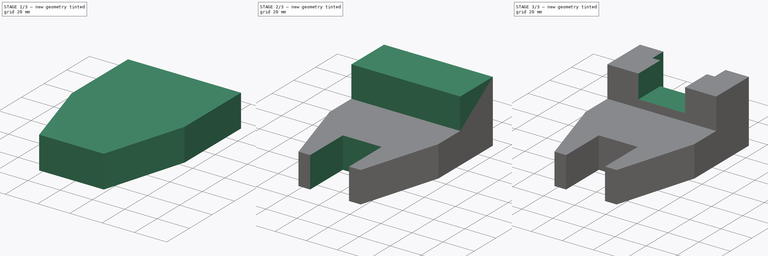
[diagram: build sequence overview — one tinted view per stage of 3, left to right]
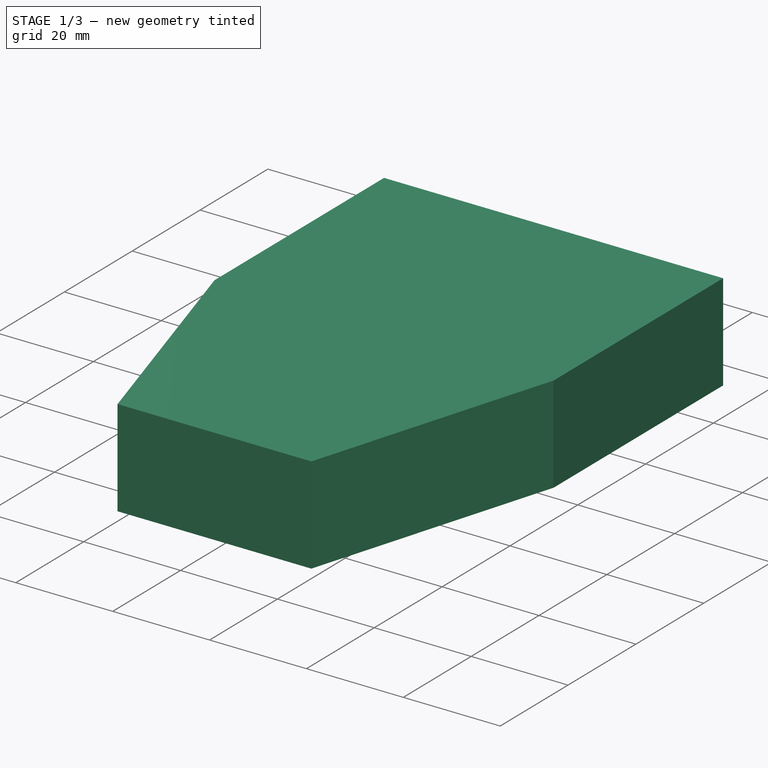
[diagram: stage 1 of 3 — iso view after this stage's code; geometry added in this stage tinted green]
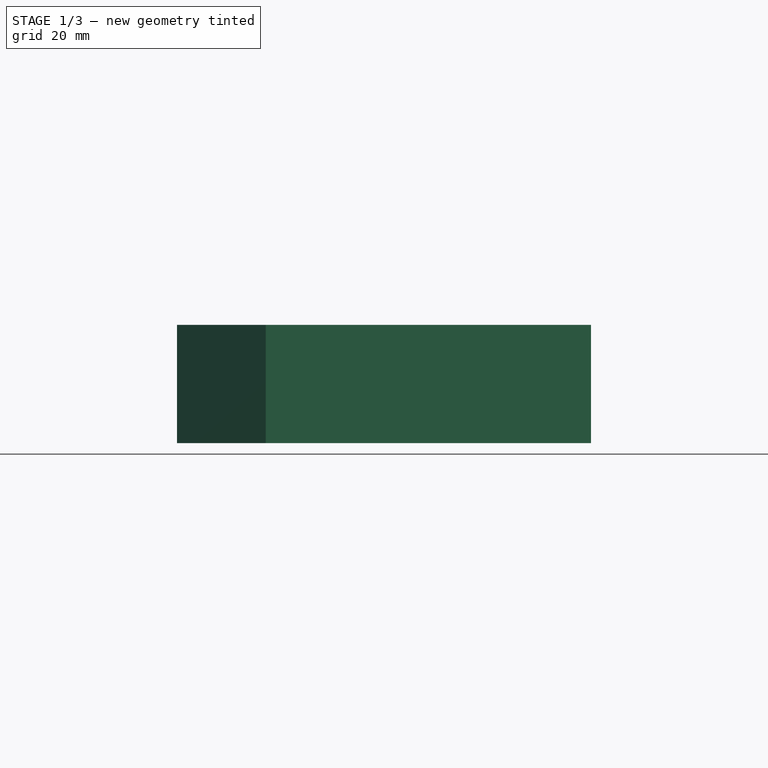
[diagram: stage 1 of 3 — front view after this stage's code; geometry added in this stage tinted green]
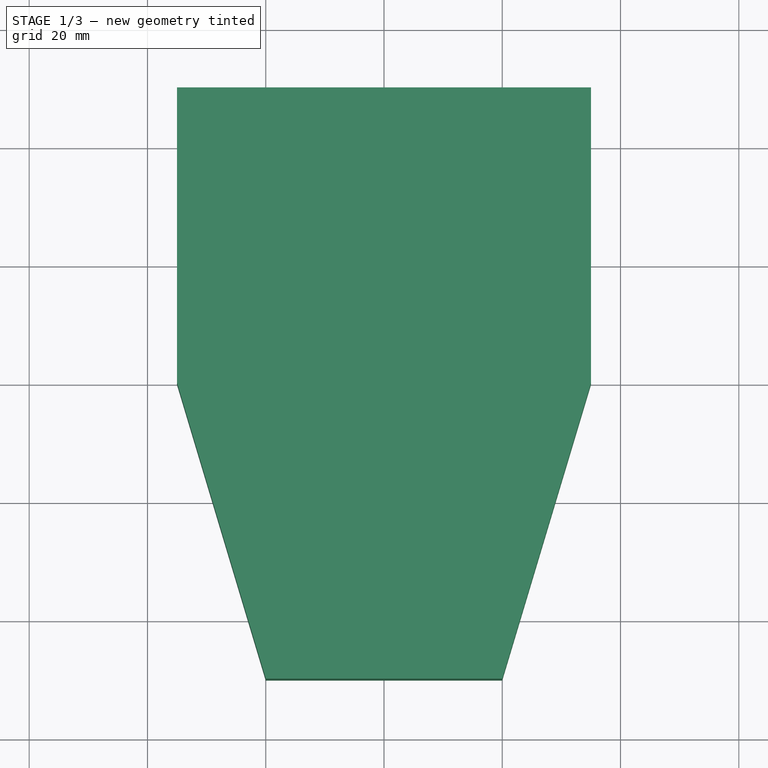
[diagram: stage 1 of 3 — top view after this stage's code; geometry added in this stage tinted green]
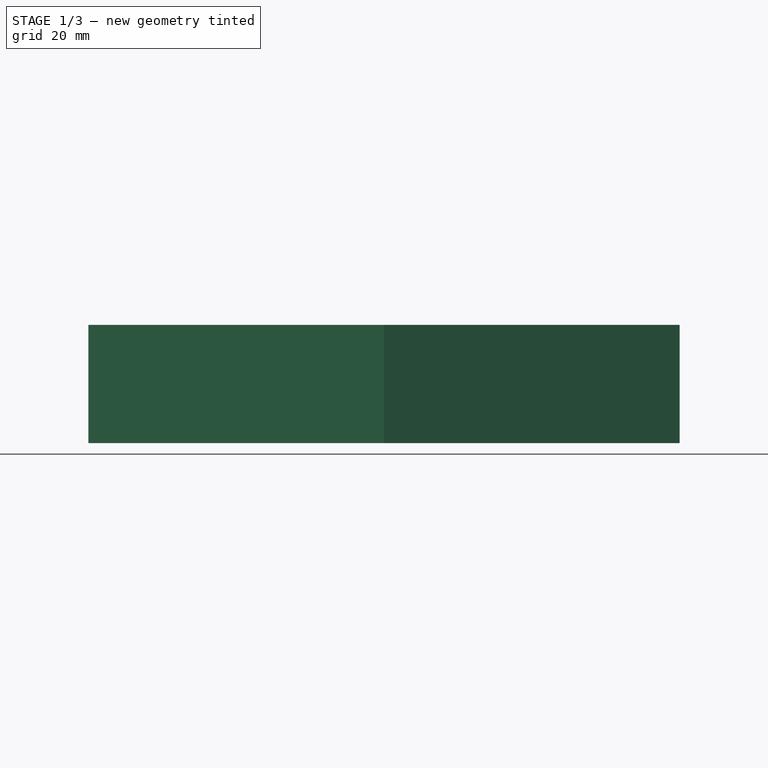
[diagram: stage 1 of 3 — right view after this stage's code; geometry added in this stage tinted green]
FCSTD DOCUMENT  (FreeCAD 0.16R)
Label: Fig 3.28 Final
License: All rights reserved
LicenseURL: http://en.wikipedia.org/wiki/All_rights_reserved
objects: Sketcher::SketchObject×6, PartDesign::Pocket×4, PartDesign::Pad×2
note: 18 computed .brp shape members not serialized (recipe doc carries the construction recipe); baked Part::Feature solids carry a one-line shape summary decoded from their .brp

FEATURE [Sketcher::SketchObject] Sketch
  sketch-geometry (4):
    g0: LineSegment StartX=-35 StartY=-50 StartZ=0 EndX=35 EndY=-50 EndZ=0
    g1: LineSegment StartX=35 StartY=-50 StartZ=0 EndX=35 EndY=50 EndZ=0
    g2: LineSegment StartX=35 StartY=50 StartZ=0 EndX=-35 EndY=50 EndZ=0
    g3: LineSegment StartX=-35 StartY=50 StartZ=0 EndX=-35 EndY=-50 EndZ=0
  constraints (12):
    c: Coincident(g0,g1)
    c: Coincident(g1,g2)
    c: Coincident(g2,g3)
    c: Coincident(g3,g0)
    c: Horizontal(g0)
    c: Horizontal(g2)
    c: Vertical(g1)
    c: Vertical(g3)
    c: DistanceY(g3,g3) = 100
    c: DistanceX(g0,g0) = 70
    c: Symmetric(g0,g0,g-2)
    c: Symmetric(g1,g0,g-1)
FEATURE [PartDesign::Pad] Pad
  Length = 20
  Length2 = 100
  Sketch = -> Sketch
  Type = 0
FEATURE [Sketcher::SketchObject] Sketch001
  ExternalGeometry = -> [Pad]
  Placement = pos=(0,0,20) rot=(0,0,1;0rad)
  Support = -> Pad [Face6]
  sketch-geometry (6):
    g0: LineSegment StartX=35 StartY=0 StartZ=0 EndX=35 EndY=-50 EndZ=0
    g1: LineSegment StartX=35 StartY=-50 StartZ=0 EndX=20 EndY=-50 EndZ=0
    g2: LineSegment StartX=20 StartY=-50 StartZ=0 EndX=35 EndY=0 EndZ=0
    g3: LineSegment StartX=-35 StartY=0 StartZ=0 EndX=-35 EndY=-50 EndZ=0
    g4: LineSegment StartX=-35 StartY=-50 StartZ=0 EndX=-20 EndY=-50 EndZ=0
    g5: LineSegment StartX=-20 StartY=-50 StartZ=0 EndX=-35 EndY=0 EndZ=0
  constraints (16):
    c: Vertical(g0)
    c: Coincident(g0,g1)
    c: Coincident(g1,g2)
    c: Coincident(g2,g0)
    c: Vertical(g3)
    c: Coincident(g3,g4)
    c: Coincident(g4,g5)
    c: Coincident(g5,g3)
    c: Coincident(g3,g-5)
    c: Horizontal(g4)
    c: Horizontal(g1)
    c: Coincident(g0,g-4)
    c: DistanceY(g0,g0) = 50
    c: DistanceY(g3,g3) = 50
    c: DistanceX(g3,g4) = 15
    c: DistanceX(g1,g0) = 15
FEATURE [PartDesign::Pocket] Pocket
  Length = 5
  Sketch = -> Sketch001
  Type = 1
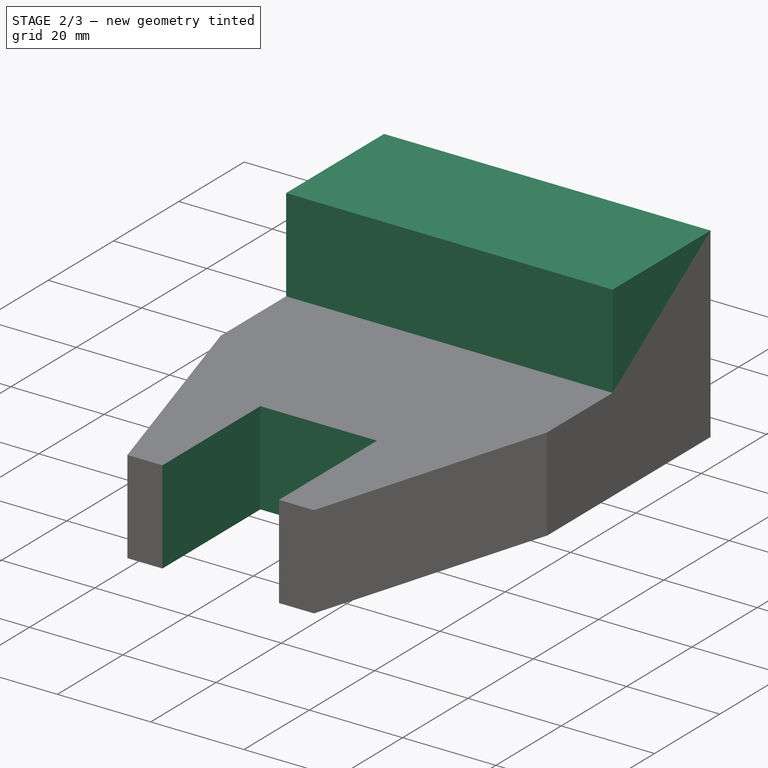
[diagram: stage 2 of 3 — iso view after this stage's code; geometry added in this stage tinted green]
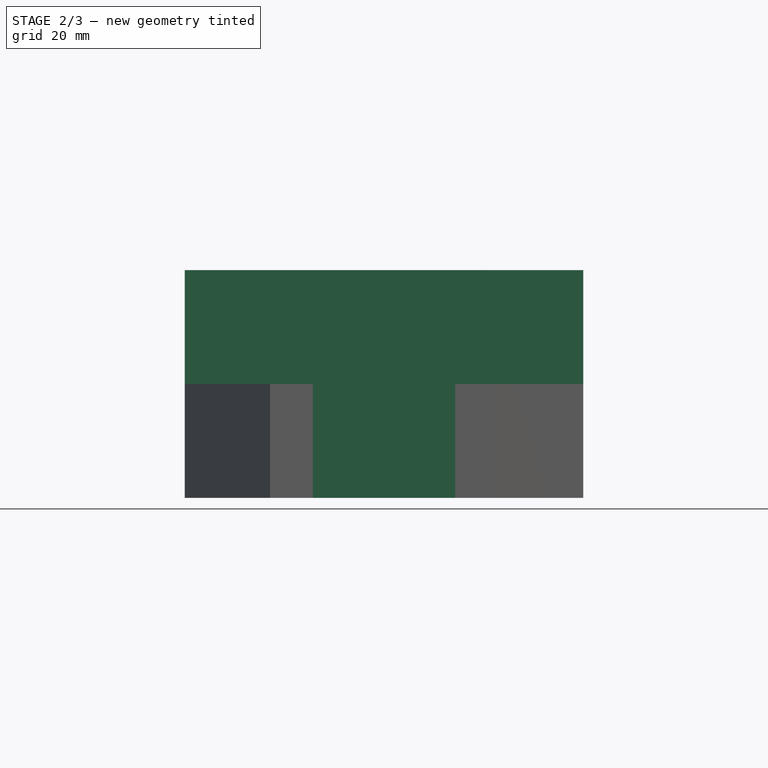
[diagram: stage 2 of 3 — front view after this stage's code; geometry added in this stage tinted green]
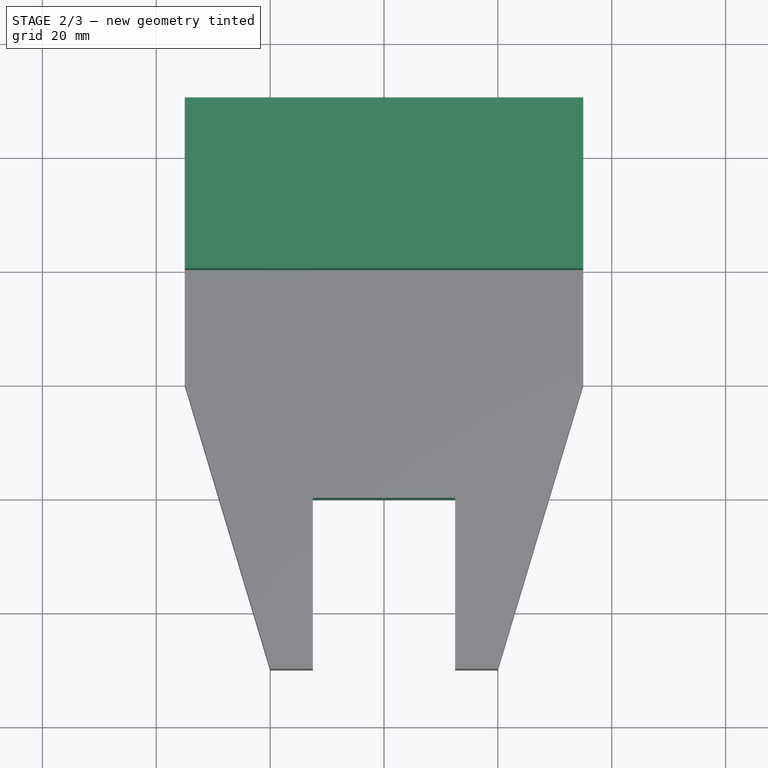
[diagram: stage 2 of 3 — top view after this stage's code; geometry added in this stage tinted green]
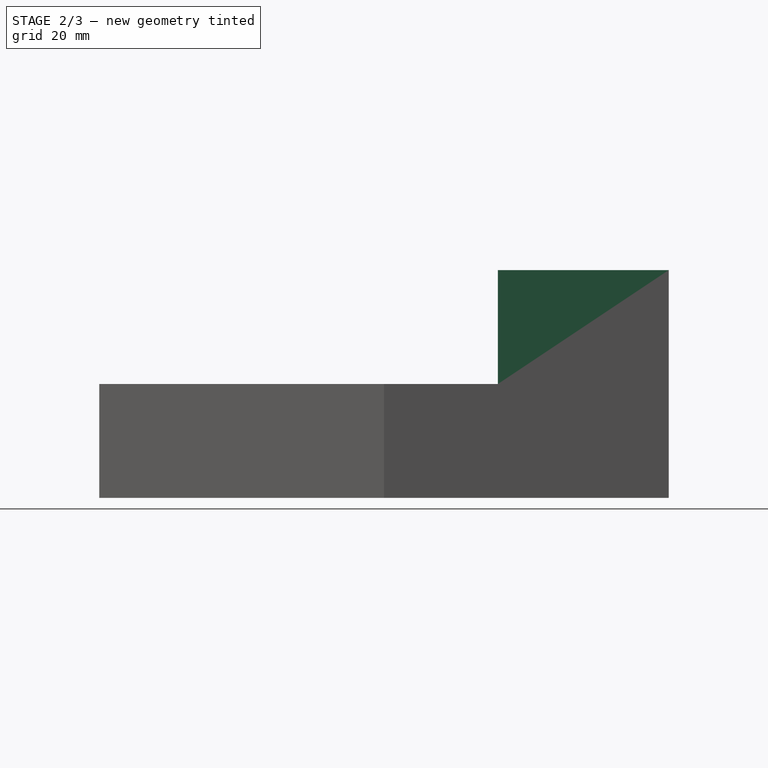
[diagram: stage 2 of 3 — right view after this stage's code; geometry added in this stage tinted green]
FEATURE [Sketcher::SketchObject] Sketch002
  ExternalGeometry = -> [Pocket]
  Placement = pos=(0,0,20) rot=(0,0,1;0rad)
  Support = -> Pocket [Face5]
  sketch-geometry (4):
    g0: LineSegment StartX=-12.5 StartY=-20 StartZ=0 EndX=12.5 EndY=-20 EndZ=0
    g1: LineSegment StartX=12.5 StartY=-20 StartZ=0 EndX=12.5 EndY=-50 EndZ=0
    g2: LineSegment StartX=12.5 StartY=-50 StartZ=0 EndX=-12.5 EndY=-50 EndZ=0
    g3: LineSegment StartX=-12.5 StartY=-50 StartZ=0 EndX=-12.5 EndY=-20 EndZ=0
  constraints (12):
    c: Coincident(g0,g1)
    c: Coincident(g1,g2)
    c: Coincident(g2,g3)
    c: Coincident(g3,g0)
    c: Horizontal(g0)
    c: Horizontal(g2)
    c: Vertical(g1)
    c: Vertical(g3)
    c: Symmetric(g1,g2,g-2)
    c: DistanceX(g2,g2) = 25
    c: DistanceY(g1,g0) = 30
    c: PointOnObject(g1,g-3)
FEATURE [PartDesign::Pocket] Pocket001
  Length = 5
  Sketch = -> Sketch002
  Type = 1
FEATURE [Sketcher::SketchObject] Sketch003
  ExternalGeometry = -> [Pocket001]
  Placement = pos=(0,0,20) rot=(0,0,1;0rad)
  Support = -> Pocket001 [Face5]
  sketch-geometry (4):
    g0: LineSegment StartX=-35 StartY=50 StartZ=0 EndX=35 EndY=50 EndZ=0
    g1: LineSegment StartX=35 StartY=50 StartZ=0 EndX=35 EndY=20 EndZ=0
    g2: LineSegment StartX=35 StartY=20 StartZ=0 EndX=-35 EndY=20 EndZ=0
    g3: LineSegment StartX=-35 StartY=20 StartZ=0 EndX=-35 EndY=50 EndZ=0
  constraints (11):
    c: Coincident(g0,g1)
    c: Coincident(g1,g2)
    c: Coincident(g2,g3)
    c: Coincident(g3,g0)
    c: Horizontal(g0)
    c: Horizontal(g2)
    c: Vertical(g1)
    c: Vertical(g3)
    c: Coincident(g0,g-3)
    c: Coincident(g0,g-3)
    c: DistanceY(g1,g1) = 30
FEATURE [PartDesign::Pad] Pad001
  Length = 20
  Length2 = 100
  Sketch = -> Sketch003
  Type = 0
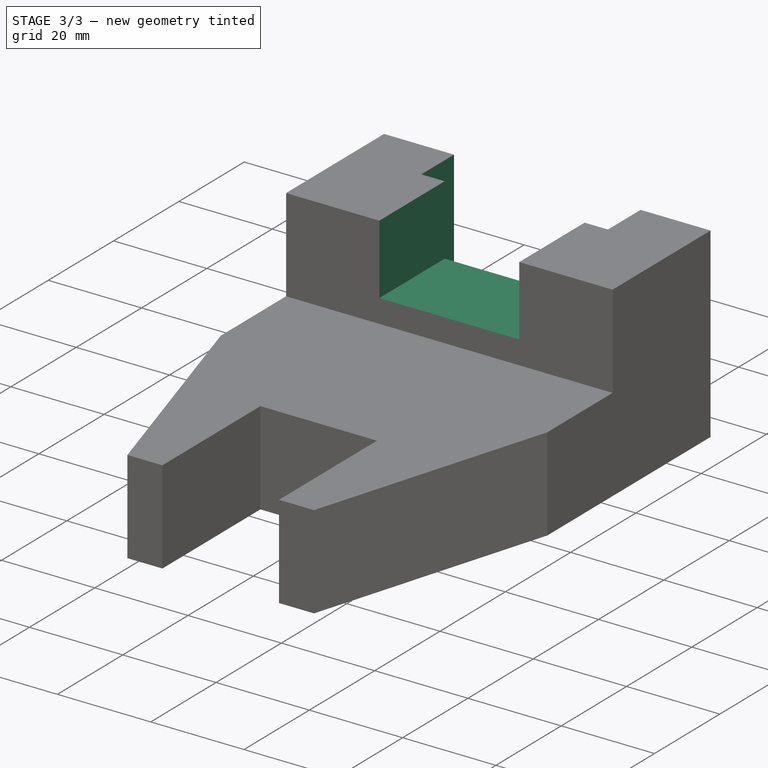
[diagram: stage 3 of 3 — iso view after this stage's code; geometry added in this stage tinted green]
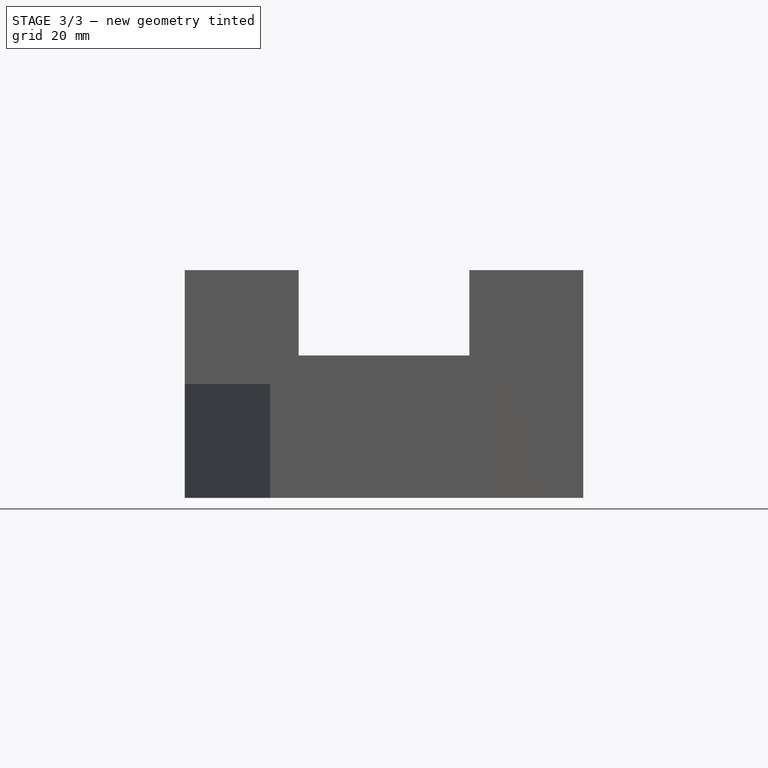
[diagram: stage 3 of 3 — front view after this stage's code; geometry added in this stage tinted green]
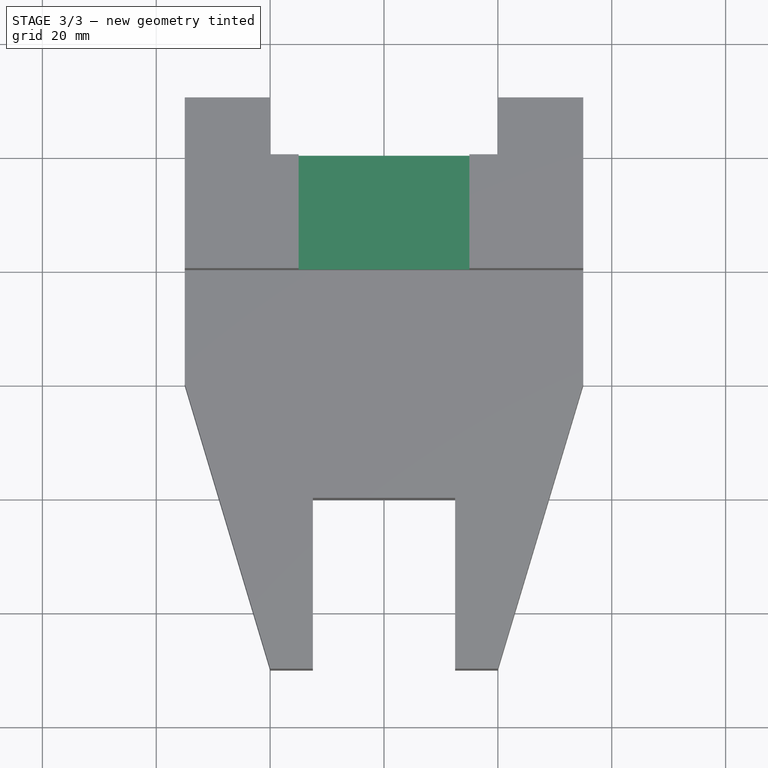
[diagram: stage 3 of 3 — top view after this stage's code; geometry added in this stage tinted green]
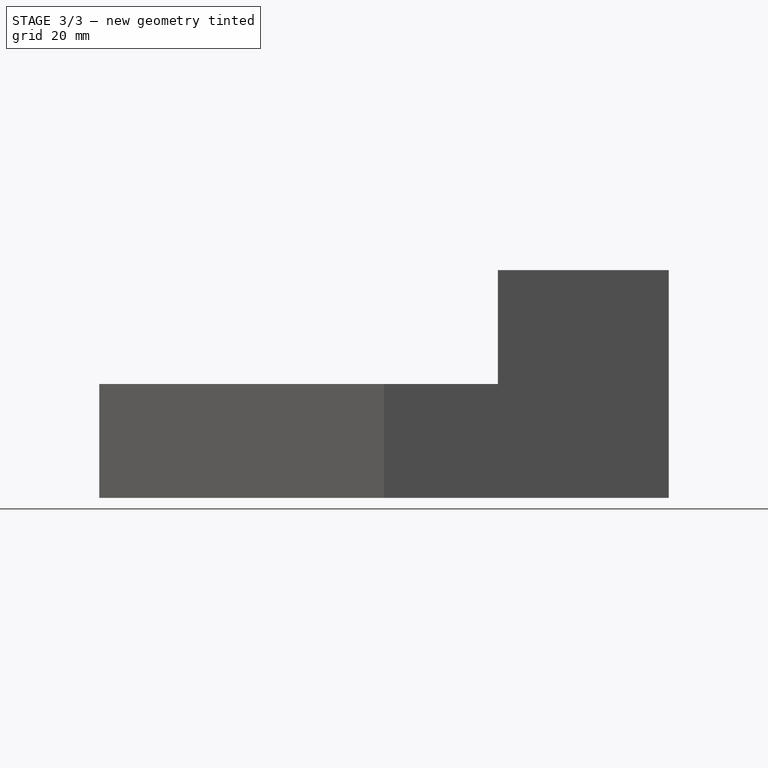
[diagram: stage 3 of 3 — right view after this stage's code; geometry added in this stage tinted green]
FEATURE [Sketcher::SketchObject] Sketch004
  ExternalGeometry = -> [Pad001]
  Placement = pos=(0,0,40) rot=(0,0,1;0rad)
  Support = -> Pad001 [Face11]
  sketch-geometry (4):
    g0: LineSegment StartX=-20 StartY=61.64 StartZ=0 EndX=20 EndY=61.64 EndZ=0
    g1: LineSegment StartX=20 StartY=61.64 StartZ=0 EndX=20 EndY=40 EndZ=0
    g2: LineSegment StartX=20 StartY=40 StartZ=0 EndX=-20 EndY=40 EndZ=0
    g3: LineSegment StartX=-20 StartY=40 StartZ=0 EndX=-20 EndY=61.64 EndZ=0
  constraints (11):
    c: Coincident(g0,g1)
    c: Coincident(g1,g2)
    c: Coincident(g2,g3)
    c: Coincident(g3,g0)
    c: Horizontal(g0)
    c: Horizontal(g2)
    c: Vertical(g1)
    c: Vertical(g3)
    c: DistanceX(g0,g0) = 40
    c: Symmetric(g1,g2,g-2)
    c: DistanceY(g1,g-3) = 10
FEATURE [PartDesign::Pocket] Pocket002
  Length = 5
  Sketch = -> Sketch004
  Type = 1
FEATURE [Sketcher::SketchObject] Sketch005
  Placement = pos=(0,0,40) rot=(0,0,1;0rad)
  Support = -> Pocket002 [Face18]
  sketch-geometry (4):
    g0: LineSegment StartX=-15 StartY=50.2933 StartZ=0 EndX=15 EndY=50.2933 EndZ=0
    g1: LineSegment StartX=15 StartY=50.2933 StartZ=0 EndX=15 EndY=12.2667 EndZ=0
    g2: LineSegment StartX=15 StartY=12.2667 StartZ=0 EndX=-15 EndY=12.2667 EndZ=0
    g3: LineSegment StartX=-15 StartY=12.2667 StartZ=0 EndX=-15 EndY=50.2933 EndZ=0
  constraints (10):
    c: Coincident(g0,g1)
    c: Coincident(g1,g2)
    c: Coincident(g2,g3)
    c: Coincident(g3,g0)
    c: Horizontal(g0)
    c: Horizontal(g2)
    c: Vertical(g1)
    c: Vertical(g3)
    c: DistanceX(g0,g0) = 30
    c: Symmetric(g0,g0,g-2)
FEATURE [PartDesign::Pocket] Pocket003
  Length = 15
  Sketch = -> Sketch005
  Type = 0
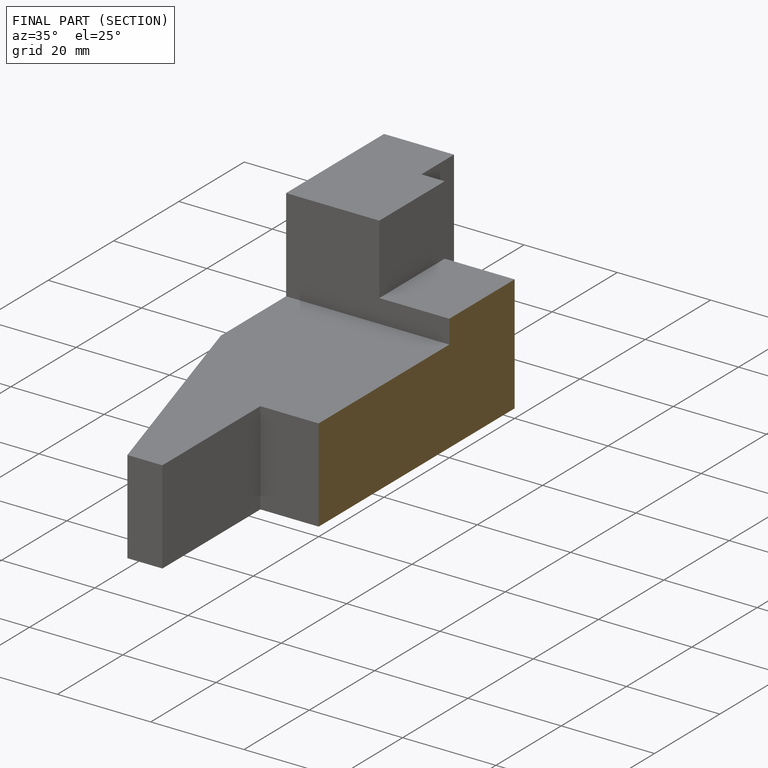
[diagram: finished part — half-section view (interior)]
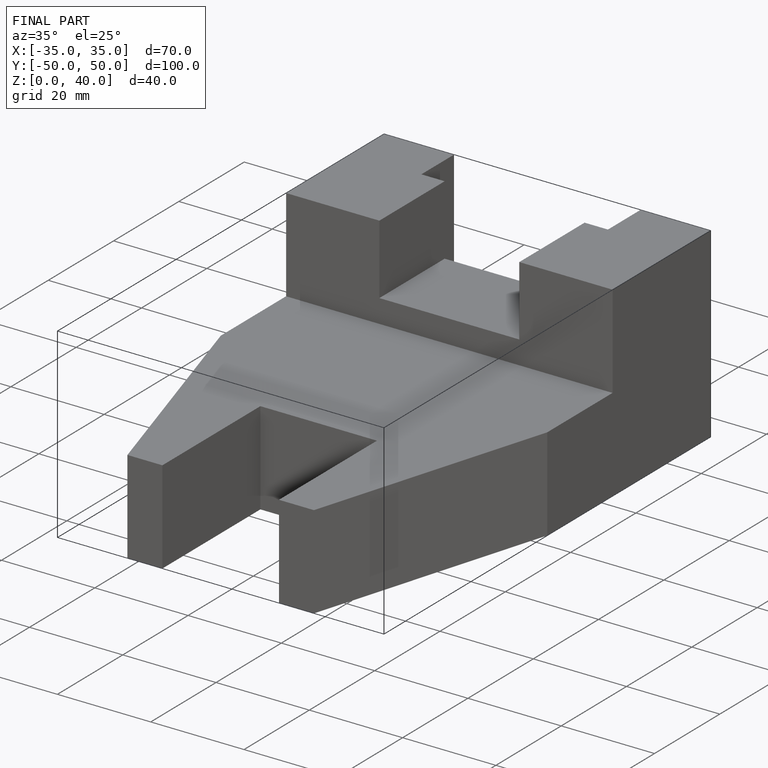
[diagram: finished part — iso view with bounding-box wireframe]
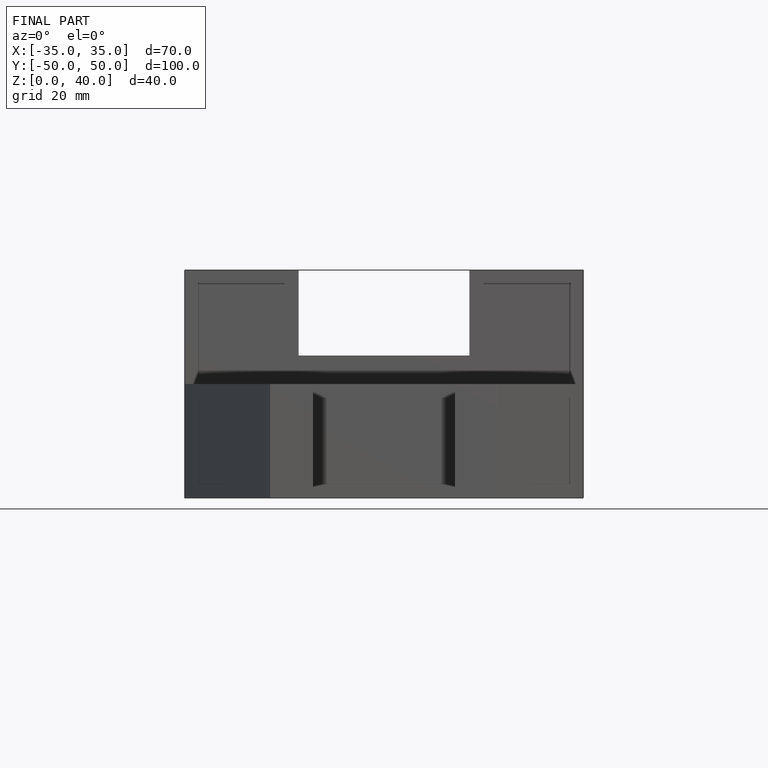
[diagram: finished part — front view with bounding-box wireframe]
